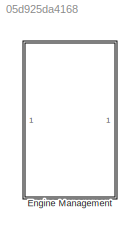
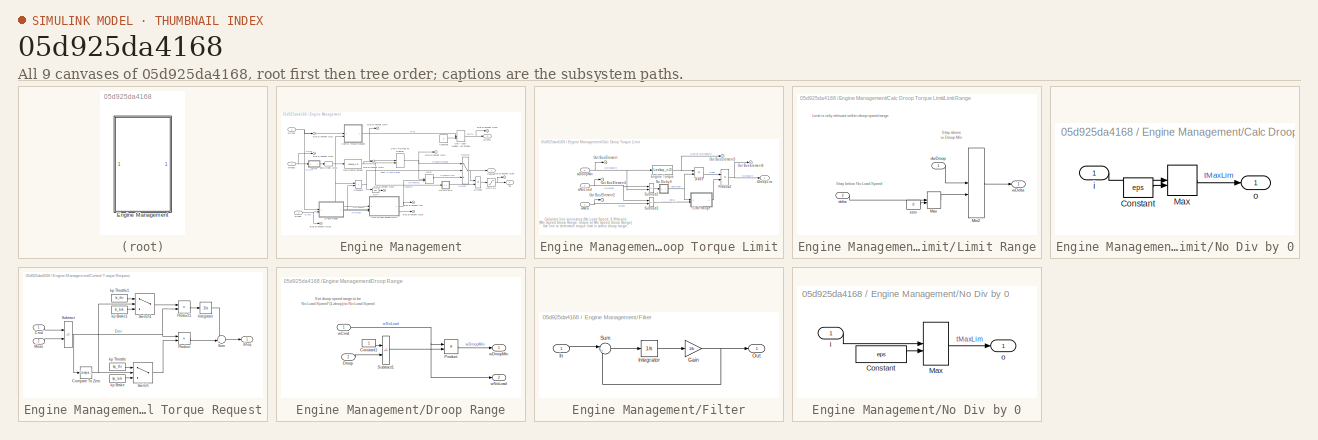
[diagram: thumbnail index - all 9 canvases of the model, root first then tree order]
MODEL slx_05d925da4168
KIND library
CONFIG SolverName = VariableStepAuto
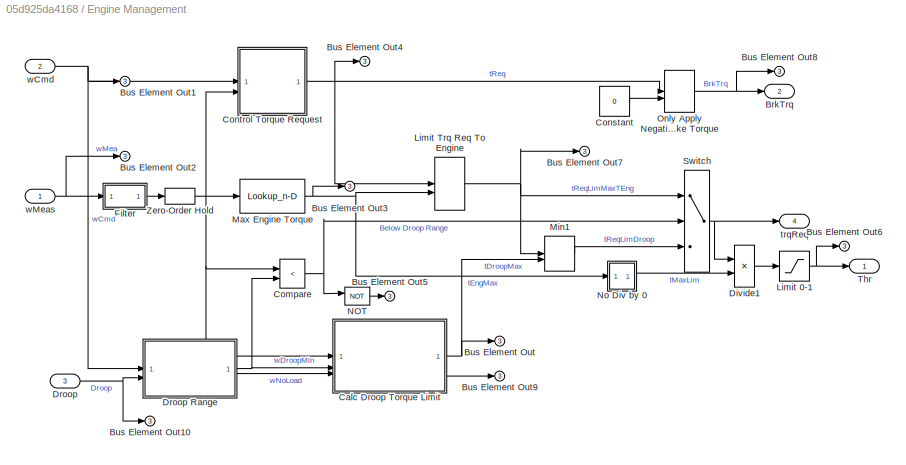
BLOCK [SubSystem] Engine Management
BLOCK [Outport] Engine Management/BrkTrq
  Port = 2
  VectorParamsAs1DForOutWhenUnconnected = off
BLOCK [Outport] Engine Management/Bus Element Out
  Port = 3
BLOCK [Outport] Engine Management/Bus Element Out1
  Port = 3
BLOCK [Outport] Engine Management/Bus Element Out10
  Port = 3
BLOCK [Outport] Engine Management/Bus Element Out2
  Port = 3
BLOCK [Outport] Engine Management/Bus Element Out3
  Port = 3
BLOCK [Outport] Engine Management/Bus Element Out4
  Port = 3
BLOCK [Outport] Engine Management/Bus Element Out5
  Port = 3
BLOCK [Outport] Engine Management/Bus Element Out6
  Port = 3
BLOCK [Outport] Engine Management/Bus Element Out7
  Port = 3
BLOCK [Outport] Engine Management/Bus Element Out8
  Port = 3
BLOCK [Outport] Engine Management/Bus Element Out9
  Port = 3
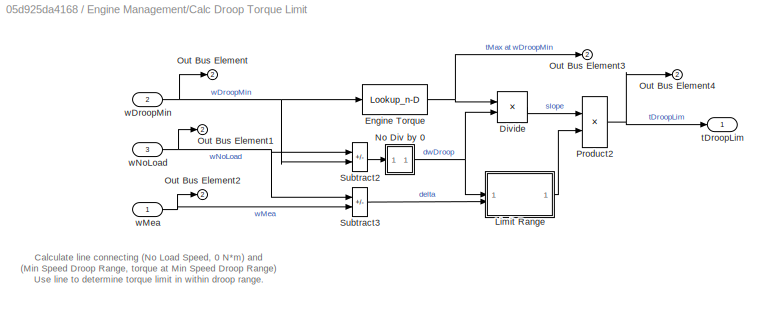
BLOCK [SubSystem] Engine Management/Calc Droop Torque Limit
BLOCK [Product] Engine Management/Calc Droop Torque Limit/Divide
  Inputs = */
BLOCK [Lookup_n-D] Engine Management/Calc Droop Torque Limit/Engine Torque
  BreakpointsForDimension1 = engine_spd
  InputPortMap = u0
  InternalRulePriority = Speed
  NumberOfTableDimensions = 1
  RndMeth = Simplest
  Table = engine_trq
BLOCK [SubSystem] Engine Management/Calc Droop Torque Limit/Limit Range
BLOCK [MinMax] Engine Management/Calc Droop Torque Limit/Limit Range/Max
  Function = max
  Inputs = 2
BLOCK [MinMax] Engine Management/Calc Droop Torque Limit/Limit Range/Min2
  Inputs = 2
BLOCK [Inport] Engine Management/Calc Droop Torque Limit/Limit Range/delta
  Port = 2
BLOCK [Inport] Engine Management/Calc Droop Torque Limit/Limit Range/dwDroop
BLOCK [Outport] Engine Management/Calc Droop Torque Limit/Limit Range/wDelta
BLOCK [Constant] Engine Management/Calc Droop Torque Limit/Limit Range/zero
  Value = 0
BLOCK [SubSystem] Engine Management/Calc Droop Torque Limit/No Div by 0
BLOCK [Constant] Engine Management/Calc Droop Torque Limit/No Div by 0/Constant
  Value = eps
BLOCK [MinMax] Engine Management/Calc Droop Torque Limit/No Div by 0/Max
  Function = max
  Inputs = 2
BLOCK [Inport] Engine Management/Calc Droop Torque Limit/No Div by 0/i
BLOCK [Outport] Engine Management/Calc Droop Torque Limit/No Div by 0/o
BLOCK [Outport] Engine Management/Calc Droop Torque Limit/Out Bus Element
  Port = 2
BLOCK [Outport] Engine Management/Calc Droop Torque Limit/Out Bus Element1
  Port = 2
BLOCK [Outport] Engine Management/Calc Droop Torque Limit/Out Bus Element2
  Port = 2
BLOCK [Outport] Engine Management/Calc Droop Torque Limit/Out Bus Element3
  Port = 2
BLOCK [Outport] Engine Management/Calc Droop Torque Limit/Out Bus Element4
  Port = 2
BLOCK [Product] Engine Management/Calc Droop Torque Limit/Product2
BLOCK [Sum] Engine Management/Calc Droop Torque Limit/Subtract2
  IconShape = rectangular
  Inputs = +-
BLOCK [Sum] Engine Management/Calc Droop Torque Limit/Subtract3
  IconShape = rectangular
  Inputs = +-
BLOCK [Outport] Engine Management/Calc Droop Torque Limit/tDroopLim
BLOCK [Inport] Engine Management/Calc Droop Torque Limit/wDroopMin
  Port = 2
BLOCK [Inport] Engine Management/Calc Droop Torque Limit/wMea
BLOCK [Inport] Engine Management/Calc Droop Torque Limit/wNoLoad
  Port = 3
BLOCK [RelationalOperator] Engine Management/Compare
  InputSameDT = off
  Operator = <
  OutDataTypeStr = boolean
  RndMeth = Simplest
  ZeroCross = off
BLOCK [Constant] Engine Management/Constant
  Value = 0
BLOCK [SubSystem] Engine Management/Control Torque Request
BLOCK [Inport] Engine Management/Control Torque Request/Cmd
BLOCK [Reference] Engine Management/Control Torque Request/Compare To Zero  REF=simulink/Logic and Bit
Operations/Compare
To Zero
  SourceBlock = simulink/Logic and Bit\nOperations/Compare\nTo Zero
  SourceType = Compare To Zero
BLOCK [Integrator] Engine Management/Control Torque Request/Integrator
BLOCK [Inport] Engine Management/Control Torque Request/Meas
  Port = 2
BLOCK [Product] Engine Management/Control Torque Request/Product
BLOCK [Product] Engine Management/Control Torque Request/Product1
BLOCK [Sum] Engine Management/Control Torque Request/Subtract
  IconShape = rectangular
  Inputs = +-
BLOCK [Sum] Engine Management/Control Torque Request/Sum
  Inputs = ++|
BLOCK [Switch] Engine Management/Control Torque Request/Switch
  Criteria = u2 > Threshold
  InputSameDT = off
  SaturateOnIntegerOverflow = off
  Threshold = 0.5
  ZeroCross = off
BLOCK [Switch] Engine Management/Control Torque Request/Switch1
  Criteria = u2 > Threshold
  InputSameDT = off
  SaturateOnIntegerOverflow = off
  Threshold = 0.5
  ZeroCross = off
BLOCK [Constant] Engine Management/Control Torque Request/kp Brake
  Value = kp_brk
BLOCK [Constant] Engine Management/Control Torque Request/kp Brake1
  Value = ki_brk
BLOCK [Constant] Engine Management/Control Torque Request/kp Throttle
  NameLocation = top
  Value = kp_thr
BLOCK [Constant] Engine Management/Control Torque Request/kp Throttle1
  NameLocation = top
  Value = ki_thr
BLOCK [Outport] Engine Management/Control Torque Request/tReq
BLOCK [Product] Engine Management/Divide1
  Inputs = */
BLOCK [Inport] Engine Management/Droop
  Port = 3
BLOCK [SubSystem] Engine Management/Droop Range
BLOCK [Constant] Engine Management/Droop Range/Constant1
BLOCK [Inport] Engine Management/Droop Range/Droop
  Port = 2
BLOCK [Product] Engine Management/Droop Range/Product
BLOCK [Sum] Engine Management/Droop Range/Subtract1
  IconShape = rectangular
  Inputs = +-
BLOCK [Inport] Engine Management/Droop Range/wCmd
BLOCK [Outport] Engine Management/Droop Range/wDroopMin
BLOCK [Outport] Engine Management/Droop Range/wNoLoad
  Port = 2
BLOCK [SubSystem] Engine Management/Filter
BLOCK [Gain] Engine Management/Filter/Gain
  Gain = 1/b
BLOCK [Inport] Engine Management/Filter/In
BLOCK [Integrator] Engine Management/Filter/Integrator
  InitialCondition = x_initial*b
BLOCK [Outport] Engine Management/Filter/Out
  VectorParamsAs1DForOutWhenUnconnected = off
BLOCK [Sum] Engine Management/Filter/Sum
  InputSameDT = on
  Inputs = |+-
  OutDataTypeStr = Inherit: Same as first input
  SaturateOnIntegerOverflow = on
BLOCK [Saturate] Engine Management/Limit 0-1
  LowerLimit = 0
  UpperLimit = 1
  ZeroCross = off
BLOCK [MinMax] Engine Management/Limit Trq Req To Engine
  Inputs = 2
  NameLocation = top
BLOCK [Lookup_n-D] Engine Management/Max Engine Torque
  BreakpointsForDimension1 = engine_spd
  InputPortMap = u0
  InternalRulePriority = Speed
  NumberOfTableDimensions = 1
  RndMeth = Simplest
  Table = engine_trq
BLOCK [MinMax] Engine Management/Min1
  Inputs = 2
BLOCK [Logic] Engine Management/NOT
  AllPortsSameDT = off
  Operator = NOT
  OutDataTypeStr = boolean
BLOCK [SubSystem] Engine Management/No Div by 0
BLOCK [Constant] Engine Management/No Div by 0/Constant
  Value = eps
BLOCK [MinMax] Engine Management/No Div by 0/Max
  Function = max
  Inputs = 2
BLOCK [Inport] Engine Management/No Div by 0/i
BLOCK [Outport] Engine Management/No Div by 0/o
BLOCK [MinMax] Engine Management/Only Apply Negative Brake Torque
  Inputs = 2
  NameLocation = top
  ZeroCross = off
BLOCK [Switch] Engine Management/Switch
  Criteria = u2 > Threshold
  InputSameDT = off
  SaturateOnIntegerOverflow = off
  ZeroCross = off
BLOCK [Outport] Engine Management/Thr
  VectorParamsAs1DForOutWhenUnconnected = off
BLOCK [ZeroOrderHold] Engine Management/Zero-Order Hold
  Commented = through
  SampleTime = 0.05
BLOCK [Outport] Engine Management/trqReq
  Port = 4
  VectorParamsAs1DForOutWhenUnconnected = off
BLOCK [Inport] Engine Management/wCmd
  Port = 2
BLOCK [Inport] Engine Management/wMeas
ANNOTATION Engine Management/Calc Droop Torque Limit: Calculate line connecting (No Load Speed, 0 N*m) and (Min Speed Droop Range, torque at Min Speed Droop Range) Use line to determine torque limit in within droop range.
ANNOTATION Engine Management/Calc Droop Torque Limit/Limit Range: Limit is only relevant within droop speed range
ANNOTATION Engine Management/Calc Droop Torque Limit/Limit Range: Stay above w Droop Min
ANNOTATION Engine Management/Calc Droop Torque Limit/Limit Range: Stay below No Load Speed
ANNOTATION Engine Management/Droop Range: Set droop speed range to be No Load Speed*(1-droop) to No Load Speed
LINE Engine Management/Calc Droop Torque Limit/Divide:1 -> Engine Management/Calc Droop Torque Limit/Product2:1
NET Engine Management/Calc Droop Torque Limit/Engine Torque:1 -> Engine Management/Calc Droop Torque Limit/Divide:1, Engine Management/Calc Droop Torque Limit/Out Bus Element3:1
LINE Engine Management/Calc Droop Torque Limit/Limit Range/Max:1 -> Engine Management/Calc Droop Torque Limit/Limit Range/Min2:2
LINE Engine Management/Calc Droop Torque Limit/Limit Range/Min2:1 -> Engine Management/Calc Droop Torque Limit/Limit Range/wDelta:1
LINE Engine Management/Calc Droop Torque Limit/Limit Range/delta:1 -> Engine Management/Calc Droop Torque Limit/Limit Range/Max:1
LINE Engine Management/Calc Droop Torque Limit/Limit Range/dwDroop:1 -> Engine Management/Calc Droop Torque Limit/Limit Range/Min2:1
LINE Engine Management/Calc Droop Torque Limit/Limit Range/zero:1 -> Engine Management/Calc Droop Torque Limit/Limit Range/Max:2
LINE Engine Management/Calc Droop Torque Limit/Limit Range:1 -> Engine Management/Calc Droop Torque Limit/Product2:2
LINE Engine Management/Calc Droop Torque Limit/No Div by 0/Constant:1 -> Engine Management/Calc Droop Torque Limit/No Div by 0/Max:2
LINE Engine Management/Calc Droop Torque Limit/No Div by 0/Max:1 -> Engine Management/Calc Droop Torque Limit/No Div by 0/o:1
LINE Engine Management/Calc Droop Torque Limit/No Div by 0/i:1 -> Engine Management/Calc Droop Torque Limit/No Div by 0/Max:1
NET Engine Management/Calc Droop Torque Limit/No Div by 0:1 -> Engine Management/Calc Droop Torque Limit/Divide:2, Engine Management/Calc Droop Torque Limit/Limit Range:1
NET Engine Management/Calc Droop Torque Limit/Product2:1 -> Engine Management/Calc Droop Torque Limit/Out Bus Element4:1, Engine Management/Calc Droop Torque Limit/tDroopLim:1
LINE Engine Management/Calc Droop Torque Limit/Subtract2:1 -> Engine Management/Calc Droop Torque Limit/No Div by 0:1
LINE Engine Management/Calc Droop Torque Limit/Subtract3:1 -> Engine Management/Calc Droop Torque Limit/Limit Range:2
NET Engine Management/Calc Droop Torque Limit/wDroopMin:1 -> Engine Management/Calc Droop Torque Limit/Engine Torque:1, Engine Management/Calc Droop Torque Limit/Out Bus Element:1, Engine Management/Calc Droop Torque Limit/Subtract2:2
NET Engine Management/Calc Droop Torque Limit/wMea:1 -> Engine Management/Calc Droop Torque Limit/Out Bus Element2:1, Engine Management/Calc Droop Torque Limit/Subtract3:2
NET Engine Management/Calc Droop Torque Limit/wNoLoad:1 -> Engine Management/Calc Droop Torque Limit/Out Bus Element1:1, Engine Management/Calc Droop Torque Limit/Subtract2:1, Engine Management/Calc Droop Torque Limit/Subtract3:1
NET Engine Management/Calc Droop Torque Limit:1 -> Engine Management/Bus Element Out:1, Engine Management/Min1:2
LINE Engine Management/Calc Droop Torque Limit:2 -> Engine Management/Bus Element Out9:1
NET Engine Management/Compare:1 -> Engine Management/NOT:1, Engine Management/Switch:2
LINE Engine Management/Constant:1 -> Engine Management/Only Apply Negative Brake Torque:2
LINE Engine Management/Control Torque Request/Cmd:1 -> Engine Management/Control Torque Request/Subtract:1
NET Engine Management/Control Torque Request/Compare To Zero:1 -> Engine Management/Control Torque Request/Switch1:2, Engine Management/Control Torque Request/Switch:2
LINE Engine Management/Control Torque Request/Integrator:1 -> Engine Management/Control Torque Request/Sum:1
LINE Engine Management/Control Torque Request/Meas:1 -> Engine Management/Control Torque Request/Subtract:2
LINE Engine Management/Control Torque Request/Product1:1 -> Engine Management/Control Torque Request/Integrator:1
LINE Engine Management/Control Torque Request/Product:1 -> Engine Management/Control Torque Request/Sum:2
NET Engine Management/Control Torque Request/Subtract:1 -> Engine Management/Control Torque Request/Compare To Zero:1, Engine Management/Control Torque Request/Product1:2, Engine Management/Control Torque Request/Product:1
LINE Engine Management/Control Torque Request/Sum:1 -> Engine Management/Control Torque Request/tReq:1
LINE Engine Management/Control Torque Request/Switch1:1 -> Engine Management/Control Torque Request/Product1:1
LINE Engine Management/Control Torque Request/Switch:1 -> Engine Management/Control Torque Request/Product:2
LINE Engine Management/Control Torque Request/kp Brake1:1 -> Engine Management/Control Torque Request/Switch1:3
LINE Engine Management/Control Torque Request/kp Brake:1 -> Engine Management/Control Torque Request/Switch:3
LINE Engine Management/Control Torque Request/kp Throttle1:1 -> Engine Management/Control Torque Request/Switch1:1
LINE Engine Management/Control Torque Request/kp Throttle:1 -> Engine Management/Control Torque Request/Switch:1
NET Engine Management/Control Torque Request:1 -> Engine Management/Bus Element Out4:1, Engine Management/Limit Trq Req To Engine:1, Engine Management/Only Apply Negative Brake Torque:1
LINE Engine Management/Divide1:1 -> Engine Management/Limit 0-1:1
LINE Engine Management/Droop Range/Constant1:1 -> Engine Management/Droop Range/Subtract1:1
LINE Engine Management/Droop Range/Droop:1 -> Engine Management/Droop Range/Subtract1:2
LINE Engine Management/Droop Range/Product:1 -> Engine Management/Droop Range/wDroopMin:1
LINE Engine Management/Droop Range/Subtract1:1 -> Engine Management/Droop Range/Product:2
NET Engine Management/Droop Range/wCmd:1 -> Engine Management/Droop Range/Product:1, Engine Management/Droop Range/wNoLoad:1
NET Engine Management/Droop Range:1 -> Engine Management/Calc Droop Torque Limit:2, Engine Management/Compare:2
LINE Engine Management/Droop Range:2 -> Engine Management/Calc Droop Torque Limit:3
NET Engine Management/Droop:1 -> Engine Management/Bus Element Out10:1, Engine Management/Droop Range:2
NET Engine Management/Filter/Gain:1 -> Engine Management/Filter/Out:1, Engine Management/Filter/Sum:2
LINE Engine Management/Filter/In:1 -> Engine Management/Filter/Sum:1
LINE Engine Management/Filter/Integrator:1 -> Engine Management/Filter/Gain:1
LINE Engine Management/Filter/Sum:1 -> Engine Management/Filter/Integrator:1
LINE Engine Management/Filter:1 -> Engine Management/Zero-Order Hold:1
NET Engine Management/Limit 0-1:1 -> Engine Management/Bus Element Out6:1, Engine Management/Thr:1
NET Engine Management/Limit Trq Req To Engine:1 -> Engine Management/Bus Element Out7:1, Engine Management/Min1:1, Engine Management/Switch:1
NET Engine Management/Max Engine Torque:1 -> Engine Management/Bus Element Out3:1, Engine Management/Limit Trq Req To Engine:2, Engine Management/No Div by 0:1
LINE Engine Management/Min1:1 -> Engine Management/Switch:3
LINE Engine Management/NOT:1 -> Engine Management/Bus Element Out5:1
LINE Engine Management/No Div by 0/Constant:1 -> Engine Management/No Div by 0/Max:2
LINE Engine Management/No Div by 0/Max:1 -> Engine Management/No Div by 0/o:1
LINE Engine Management/No Div by 0/i:1 -> Engine Management/No Div by 0/Max:1
LINE Engine Management/No Div by 0:1 -> Engine Management/Divide1:2
NET Engine Management/Only Apply Negative Brake Torque:1 -> Engine Management/BrkTrq:1, Engine Management/Bus Element Out8:1
NET Engine Management/Switch:1 -> Engine Management/Divide1:1, Engine Management/trqReq:1
NET Engine Management/Zero-Order Hold:1 -> Engine Management/Calc Droop Torque Limit:1, Engine Management/Compare:1, Engine Management/Control Torque Request:2, Engine Management/Max Engine Torque:1
NET Engine Management/wCmd:1 -> Engine Management/Bus Element Out1:1, Engine Management/Control Torque Request:1, Engine Management/Droop Range:1
NET Engine Management/wMeas:1 -> Engine Management/Bus Element Out2:1, Engine Management/Filter:1
note: NET lines group one-source signal fan-out (src -> all destinations, sorted); 1:1 wires keep LINE
